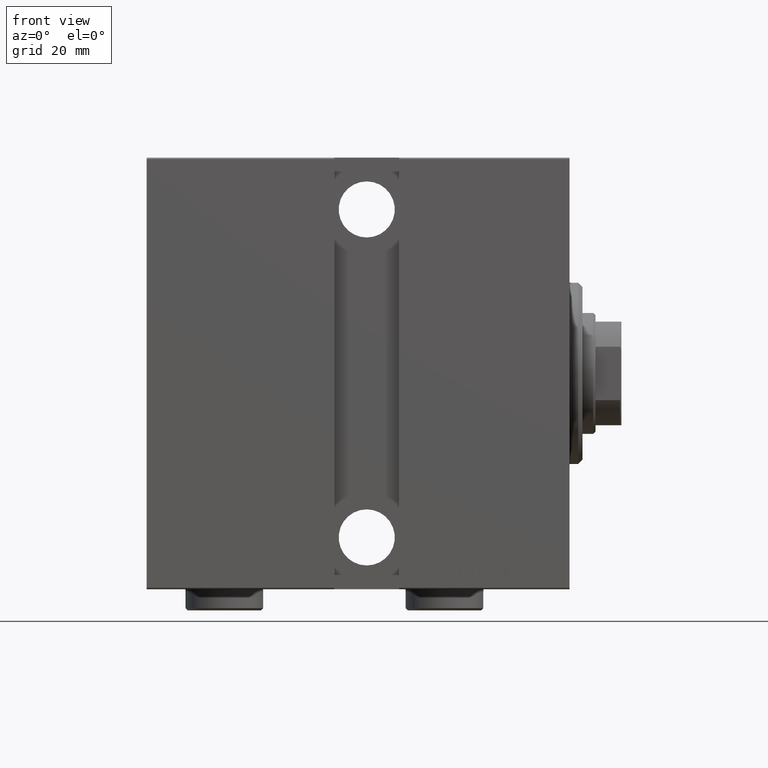
[diagram: clean part render]
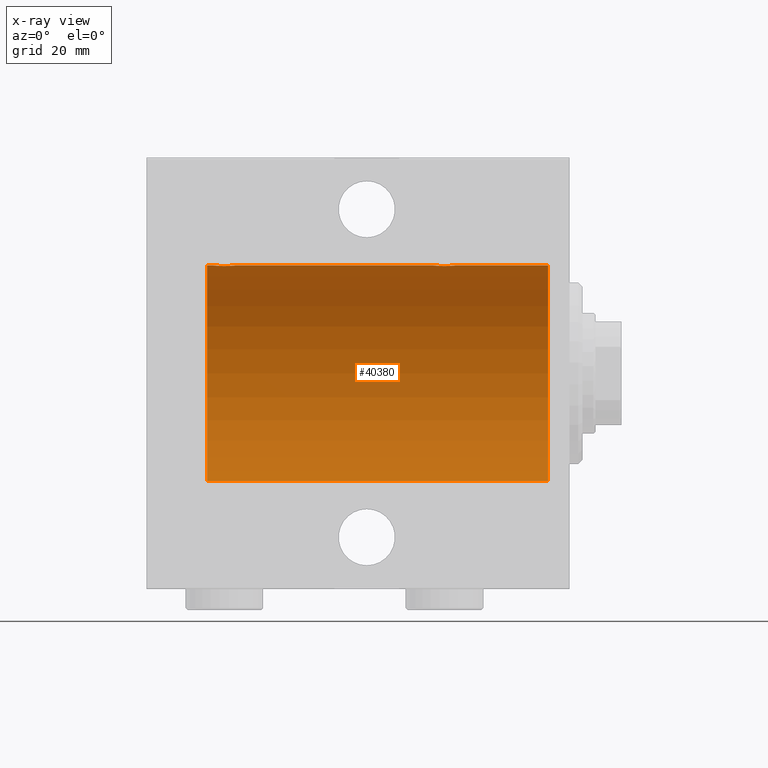
[diagram: x-ray — body ghosted, one internal face saturated and labeled with its STEP entity id]
A machine part, front view, then the same camera in x-ray: the body is ghosted and one INTERNAL B-rep face — a face not visible from any outside direction — is saturated and labeled: STEP entity #40380.
In plain terms, the highlighted cylindrical surface (partial cylindrical patch) has radius 25 mm, axis along (1, 0, -0).
Its self-contained STEP definition (entity closure, byte-faithful):
#356 = CARTESIAN_POINT ( 'NONE',  ( 27.34616663850662377, -1.881857718844717642, 24.92933960374833902 ) ) ;
#478 = ORIENTED_EDGE ( 'NONE', *, *, #33366, .T. ) ;
#578 = CARTESIAN_POINT ( 'NONE',  ( 28.35095609830904095, -2.419770561643911133, 24.88263927071751169 ) ) ;
#1427 = LINE ( 'NONE', #39057, #20992 ) ;
#2163 = LINE ( 'NONE', #37487, #43838 ) ;
#2765 = CARTESIAN_POINT ( 'NONE',  ( 82.16827641493958367, -1.255214705003175446, 24.96884293994578030 ) ) ;
#2984 = CARTESIAN_POINT ( 'NONE',  ( 82.43349355239749343, -0.6588655613945794132, 24.99312727339970053 ) ) ;
#3433 = CARTESIAN_POINT ( 'NONE',  ( 77.50000000000004263, -0.1631750940176218967, 25.00000000000000355 ) ) ;
#3709 = CARTESIAN_POINT ( 'NONE',  ( 26.50000000000001066, -0.1631750940176202591, 25.00000000000001066 ) ) ;
#3754 = VERTEX_POINT ( 'NONE', #29375 ) ;
#3929 = CARTESIAN_POINT ( 'NONE',  ( 26.51582159942343608, -0.3254210271412226740, 24.99840249400844883 ) ) ;
#4145 = CARTESIAN_POINT ( 'NONE',  ( 28.19211657594193809, -2.371528299825748753, 24.88734287464371064 ) ) ;
#4580 = CARTESIAN_POINT ( 'NONE',  ( 30.65121133559111755, -1.884161199660619124, 24.92916496727982079 ) ) ;
#4992 = EDGE_CURVE ( 'NONE', #36792, #24280, #28335, .T. ) ;
#5496 = EDGE_CURVE ( 'NONE', #36792, #10493, #2163, .T. ) ;
#5500 = CIRCLE ( 'NONE', #30401, 25.00000000000000000 ) ;
#6231 = LINE ( 'NONE', #19602, #40265 ) ;
#6324 = CARTESIAN_POINT ( 'NONE',  ( 82.50000000000001421, 2.791216707898424283E-15, 25.00000000000000000 ) ) ;
#6994 = CARTESIAN_POINT ( 'NONE',  ( 80.16323589638544433, -2.500125740978193178, 24.87467329022545925 ) ) ;
#7273 = CARTESIAN_POINT ( 'NONE',  ( 30.88185954148646317, -1.653834020452940479, 24.94550385189585739 ) ) ;
#7713 = CARTESIAN_POINT ( 'NONE',  ( 26.82988709719075260, -1.252049606094339351, 24.96900299967626680 ) ) ;
#7925 = CARTESIAN_POINT ( 'NONE',  ( 30.25084023924055643, -2.170728182476721280, 24.90574631553725027 ) ) ;
#8339 = DIRECTION ( 'NONE',  ( -1.000000000000000000, -0.000000000000000000, -0.000000000000000000 ) ) ;
#8355 = CARTESIAN_POINT ( 'NONE',  ( 84.00000000000000000, 0.000000000000000000, 0.000000000000000000 ) ) ;
#8666 = VERTEX_POINT ( 'NONE', #26337 ) ;
#9364 = CARTESIAN_POINT ( 'NONE',  ( 26.50000000000000355, -1.940558383798427991E-23, 25.00000000000000000 ) ) ;
#9456 = CARTESIAN_POINT ( 'NONE',  ( 79.67052319885733880, -2.483544361357268304, 24.87635491893502149 ) ) ;
#9670 = CARTESIAN_POINT ( 'NONE',  ( 77.51582159942344674, -0.3254210271412231181, 24.99840249400844883 ) ) ;
#9895 = CARTESIAN_POINT ( 'NONE',  ( 82.50000000000005684, -0.3305063766663752789, 25.00000000000000711 ) ) ;
#10319 = VERTEX_POINT ( 'NONE', #38498 ) ;
#10330 = CARTESIAN_POINT ( 'NONE',  ( 79.83293504821945419, -2.499872792855080572, 24.87469871246082675 ) ) ;
#10493 = VERTEX_POINT ( 'NONE', #16867 ) ;
#12150 = FACE_OUTER_BOUND ( 'NONE', #42795, .T. ) ;
#12929 = DIRECTION ( 'NONE',  ( -1.000000000000000000, 0.000000000000000000, 0.000000000000000000 ) ) ;
#13025 = CARTESIAN_POINT ( 'NONE',  ( 81.10723845838413126, -2.247417070759893942, 24.89885693081947338 ) ) ;
#13415 = ORIENTED_EDGE ( 'NONE', *, *, #18627, .F. ) ;
#13980 = ORIENTED_EDGE ( 'NONE', *, *, #32767, .T. ) ;
#14164 = CARTESIAN_POINT ( 'NONE',  ( 30.98538033717094464, -1.528152964861313023, 24.95362559291378801 ) ) ;
#16143 = DIRECTION ( 'NONE',  ( 0.000000000000000000, 0.000000000000000000, 1.000000000000000000 ) ) ;
#16577 = CARTESIAN_POINT ( 'NONE',  ( 78.34616663850664509, -1.881857718844719640, 24.92933960374833902 ) ) ;
#16793 = CARTESIAN_POINT ( 'NONE',  ( 78.47463817756926119, -1.987446652080266496, 24.92104239223421303 ) ) ;
#16867 = CARTESIAN_POINT ( 'NONE',  ( 5.000000000000004441, 0.000000000000000000, 25.00000000000000000 ) ) ;
#17012 = CARTESIAN_POINT ( 'NONE',  ( 78.11587617213530166, -1.651251241585104834, 24.94567559498348785 ) ) ;
#17291 = CARTESIAN_POINT ( 'NONE',  ( 29.80435660916302254, -2.372734907014176553, 24.88722742718433878 ) ) ;
#17294 = EDGE_CURVE ( 'NONE', #8666, #3754, #25344, .T. ) ;
#17511 = CARTESIAN_POINT ( 'NONE',  ( 27.47463817756919369, -1.987446652080264275, 24.92104239223420592 ) ) ;
#17947 = CARTESIAN_POINT ( 'NONE',  ( 27.74616804575497042, -2.169003991399871989, 24.90589728951139037 ) ) ;
#18006 = LINE ( 'NONE', #28246, #27551 ) ;
#18371 = DIRECTION ( 'NONE',  ( 0.000000000000000000, 0.000000000000000000, 1.000000000000000000 ) ) ;
#18627 = EDGE_CURVE ( 'NONE', #24331, #24280, #6231, .T. ) ;
#18948 = EDGE_CURVE ( 'NONE', #24331, #32923, #22329, .T. ) ;
#19602 = CARTESIAN_POINT ( 'NONE',  ( 84.00000000000000000, 0.000000000000000000, 25.00000000000000000 ) ) ;
#19693 = CARTESIAN_POINT ( 'NONE',  ( 78.01250184165604651, -1.525407911884360201, 24.95379469572362297 ) ) ;
#19911 = CARTESIAN_POINT ( 'NONE',  ( 77.50000000000001421, -1.940163953345817485E-23, 25.00000000000000000 ) ) ;
#20079 = ORIENTED_EDGE ( 'NONE', *, *, #17294, .F. ) ;
#20350 = CARTESIAN_POINT ( 'NONE',  ( 78.88963203491135801, -2.245863995402899160, 24.89899750494197050 ) ) ;
#20992 = VECTOR ( 'NONE', #8339, 1000.000000000000000 ) ;
#21284 = CARTESIAN_POINT ( 'NONE',  ( 27.11587617213529100, -1.651251241585102836, 24.94567559498349141 ) ) ;
#21539 = ORIENTED_EDGE ( 'NONE', *, *, #5496, .F. ) ;
#21897 = EDGE_CURVE ( 'NONE', #3754, #32923, #1427, .T. ) ;
#22329 = B_SPLINE_CURVE_WITH_KNOTS ( 'NONE', 3,
 ( #19911, #3433, #9670, #37497, #33499, #37266, #30152, #19693, #17012, #16577, #16793, #36619, #20350, #40828, #30369, #9456, #10330, #6994, #23243, #30813, #43522, #13025, #30590, #33277, #37052, #40385, #26592, #2765, #36836, #2984, #9895, #6324 ),
 .UNSPECIFIED., .F., .F.,
 ( 4, 2, 2, 2, 2, 2, 2, 2, 2, 2, 2, 2, 2, 2, 2, 4 ),
 ( 0.007821024441662294616, 0.008309723826317902753, 0.008798423210973510891, 0.009287122595629119029, 0.009775821980284727167, 0.01026452136494033530, 0.01075322074959594344, 0.01124192013425155158, 0.01173061951890715972, 0.01221931890356276786, 0.01270801828821837599, 0.01319671767287398413, 0.01368541705752959400, 0.01417411644218520041, 0.01466281582684080854, 0.01564021459615200921 ),
 .UNSPECIFIED. ) ;
#22479 = AXIS2_PLACEMENT_3D ( 'NONE', #32238, #36414, #16143 ) ;
#23243 = CARTESIAN_POINT ( 'NONE',  ( 80.32596570039464723, -2.484007091859760763, 24.87630842367763861 ) ) ;
#24188 = CARTESIAN_POINT ( 'NONE',  ( 29.32596570039459749, -2.484007091859766092, 24.87630842367763506 ) ) ;
#24280 = VERTEX_POINT ( 'NONE', #38094 ) ;
#24331 = VERTEX_POINT ( 'NONE', #34975 ) ;
#24409 = CARTESIAN_POINT ( 'NONE',  ( 31.24606379094068132, -1.109818057797417712, 24.97580694515542632 ) ) ;
#24804 = CARTESIAN_POINT ( 'NONE',  ( 82.50000000000001421, 2.791216707898424283E-15, 25.00000000000000000 ) ) ;
#25061 = CARTESIAN_POINT ( 'NONE',  ( 26.75239748980448695, -1.106703319666882956, 24.97594585958023217 ) ) ;
#25307 = ORIENTED_EDGE ( 'NONE', *, *, #18948, .T. ) ;
#25344 = CIRCLE ( 'NONE', #22479, 25.00000000000000000 ) ;
#25411 = CARTESIAN_POINT ( 'NONE',  ( 5.000000000000004441, 0.000000000000000000, 0.000000000000000000 ) ) ;
#26337 = CARTESIAN_POINT ( 'NONE',  ( 84.00000000000000000, 3.061616997868382254E-15, -25.00000000000000000 ) ) ;
#26592 = CARTESIAN_POINT ( 'NONE',  ( 81.98538033717099438, -1.528152964861306806, 24.95362559291379156 ) ) ;
#27528 = CARTESIAN_POINT ( 'NONE',  ( 31.43349355239748988, -0.6588655613945876288, 24.99312727339970408 ) ) ;
#27551 = VECTOR ( 'NONE', #28028, 1000.000000000000000 ) ;
#27747 = CARTESIAN_POINT ( 'NONE',  ( 31.16827641493957302, -1.255214705003182774, 24.96884293994578385 ) ) ;
#28028 = DIRECTION ( 'NONE',  ( -1.000000000000000000, -0.000000000000000000, -0.000000000000000000 ) ) ;
#28183 = CARTESIAN_POINT ( 'NONE',  ( 30.52256774340189338, -1.989585286700246369, 24.92087098724766037 ) ) ;
#28246 = CARTESIAN_POINT ( 'NONE',  ( 84.00000000000000000, 3.061616997868382254E-15, -25.00000000000000000 ) ) ;
#28335 = B_SPLINE_CURVE_WITH_KNOTS ( 'NONE', 3,
 ( #41332, #3709, #3929, #38204, #38414, #25061, #7713, #34651, #21284, #356, #17511, #17947, #31302, #4145, #578, #30865, #34434, #31078, #24188, #38626, #17291, #37770, #7925, #28183, #4580, #7273, #14164, #27747, #24409, #27528, #41103, #31739 ),
 .UNSPECIFIED., .F., .F.,
 ( 4, 2, 2, 2, 2, 2, 2, 2, 2, 2, 2, 2, 2, 2, 2, 4 ),
 ( 0.007821024441662273799, 0.008309723826317880202, 0.008798423210973484870, 0.009287122595629091273, 0.009775821980284697676, 0.01026452136494030234, 0.01075322074959590701, 0.01124192013425151342, 0.01173061951890711982, 0.01221931890356272449, 0.01270801828821833263, 0.01319671767287393729, 0.01368541705752954196, 0.01417411644218514837, 0.01466281582684075477, 0.01564021459615196757 ),
 .UNSPECIFIED. ) ;
#29375 = CARTESIAN_POINT ( 'NONE',  ( 84.00000000000000000, 0.000000000000000000, 25.00000000000000000 ) ) ;
#29549 = DIRECTION ( 'NONE',  ( -1.000000000000000000, -0.000000000000000000, -0.000000000000000000 ) ) ;
#30152 = CARTESIAN_POINT ( 'NONE',  ( 77.82988709719073483, -1.252049606094332024, 24.96900299967626680 ) ) ;
#30369 = CARTESIAN_POINT ( 'NONE',  ( 79.35095609830904095, -2.419770561643906248, 24.88263927071751169 ) ) ;
#30401 = AXIS2_PLACEMENT_3D ( 'NONE', #25411, #12929, #40285 ) ;
#30590 = CARTESIAN_POINT ( 'NONE',  ( 81.25084023924057419, -2.170728182476715951, 24.90574631553725027 ) ) ;
#30813 = CARTESIAN_POINT ( 'NONE',  ( 80.64560666148635448, -2.420689345803754833, 24.88254961038874313 ) ) ;
#30865 = CARTESIAN_POINT ( 'NONE',  ( 28.67052319885731393, -2.483544361357271413, 24.87635491893501438 ) ) ;
#31078 = CARTESIAN_POINT ( 'NONE',  ( 29.16323589638542302, -2.500125740978195843, 24.87467329022545570 ) ) ;
#31302 = CARTESIAN_POINT ( 'NONE',  ( 27.88963203491136866, -2.245863995402901825, 24.89899750494197761 ) ) ;
#31325 = AXIS2_PLACEMENT_3D ( 'NONE', #8355, #38846, #18371 ) ;
#31739 = CARTESIAN_POINT ( 'NONE',  ( 31.50000000000000000, -3.363311788663921560E-15, 25.00000000000000000 ) ) ;
#32238 = CARTESIAN_POINT ( 'NONE',  ( 84.00000000000000000, 0.000000000000000000, 0.000000000000000000 ) ) ;
#32767 = EDGE_CURVE ( 'NONE', #8666, #10319, #18006, .T. ) ;
#32923 = VERTEX_POINT ( 'NONE', #24804 ) ;
#33277 = CARTESIAN_POINT ( 'NONE',  ( 81.52256774340189338, -1.989585286700241484, 24.92087098724765681 ) ) ;
#33366 = EDGE_CURVE ( 'NONE', #10319, #10493, #5500, .T. ) ;
#33499 = CARTESIAN_POINT ( 'NONE',  ( 77.62784030591393503, -0.8058335233485491855, 24.98746277938383287 ) ) ;
#34434 = CARTESIAN_POINT ( 'NONE',  ( 28.83293504821939734, -2.499872792855082793, 24.87469871246082675 ) ) ;
#34651 = CARTESIAN_POINT ( 'NONE',  ( 27.01250184165601453, -1.525407911884367085, 24.95379469572361941 ) ) ;
#34975 = CARTESIAN_POINT ( 'NONE',  ( 77.50000000000001421, -1.940163953345817485E-23, 25.00000000000000000 ) ) ;
#35776 = ORIENTED_EDGE ( 'NONE', *, *, #4992, .T. ) ;
#36319 = DIRECTION ( 'NONE',  ( -1.000000000000000000, -0.000000000000000000, -0.000000000000000000 ) ) ;
#36414 = DIRECTION ( 'NONE',  ( -1.000000000000000000, 0.000000000000000000, 0.000000000000000000 ) ) ;
#36619 = CARTESIAN_POINT ( 'NONE',  ( 78.74616804575498463, -2.169003991399871989, 24.90589728951138682 ) ) ;
#36792 = VERTEX_POINT ( 'NONE', #9364 ) ;
#36836 = CARTESIAN_POINT ( 'NONE',  ( 82.24606379094068132, -1.109818057797408608, 24.97580694515542277 ) ) ;
#37052 = CARTESIAN_POINT ( 'NONE',  ( 81.65121133559114242, -1.884161199660608688, 24.92916496727982434 ) ) ;
#37266 = CARTESIAN_POINT ( 'NONE',  ( 77.75239748980452248, -1.106703319666886065, 24.97594585958023572 ) ) ;
#37487 = CARTESIAN_POINT ( 'NONE',  ( 84.00000000000000000, 0.000000000000000000, 25.00000000000000000 ) ) ;
#37497 = CARTESIAN_POINT ( 'NONE',  ( 77.57985090779074255, -0.6480119923854228414, 24.99212088949390775 ) ) ;
#37770 = CARTESIAN_POINT ( 'NONE',  ( 30.10723845838410284, -2.247417070759899271, 24.89885693081946272 ) ) ;
#38094 = CARTESIAN_POINT ( 'NONE',  ( 31.50000000000000000, -3.363311788663921560E-15, 25.00000000000000000 ) ) ;
#38204 = CARTESIAN_POINT ( 'NONE',  ( 26.57985090779071413, -0.6480119923854232855, 24.99212088949390775 ) ) ;
#38414 = CARTESIAN_POINT ( 'NONE',  ( 26.62784030591392437, -0.8058335233485456328, 24.98746277938383287 ) ) ;
#38498 = CARTESIAN_POINT ( 'NONE',  ( 5.000000000000004441, 3.061616997868382254E-15, -25.00000000000000000 ) ) ;
#38626 = CARTESIAN_POINT ( 'NONE',  ( 29.64560666148631896, -2.420689345803761938, 24.88254961038873958 ) ) ;
#38846 = DIRECTION ( 'NONE',  ( -1.000000000000000000, -0.000000000000000000, -0.000000000000000000 ) ) ;
#39057 = CARTESIAN_POINT ( 'NONE',  ( 84.00000000000000000, 0.000000000000000000, 25.00000000000000000 ) ) ;
#39073 = CYLINDRICAL_SURFACE ( 'NONE', #31325, 25.00000000000000000 ) ;
#40265 = VECTOR ( 'NONE', #36319, 1000.000000000000000 ) ;
#40285 = DIRECTION ( 'NONE',  ( 0.000000000000000000, 0.000000000000000000, 1.000000000000000000 ) ) ;
#40380 = ADVANCED_FACE ( 'NONE', ( #12150 ), #39073, .F. ) ;
#40385 = CARTESIAN_POINT ( 'NONE',  ( 81.88185954148649159, -1.653834020452929598, 24.94550385189585029 ) ) ;
#40828 = CARTESIAN_POINT ( 'NONE',  ( 79.19211657594196652, -2.371528299825746089, 24.88734287464371420 ) ) ;
#41103 = CARTESIAN_POINT ( 'NONE',  ( 31.49999999999999289, -0.3305063766663730029, 25.00000000000000355 ) ) ;
#41332 = CARTESIAN_POINT ( 'NONE',  ( 26.50000000000000355, -1.940558383798427991E-23, 25.00000000000000000 ) ) ;
#42795 = EDGE_LOOP ( 'NONE', ( #20079, #13980, #478, #21539, #35776, #13415, #25307, #42838 ) ) ;
#42838 = ORIENTED_EDGE ( 'NONE', *, *, #21897, .F. ) ;
#43522 = CARTESIAN_POINT ( 'NONE',  ( 80.80435660916305096, -2.372734907014170780, 24.88722742718433523 ) ) ;
#43838 = VECTOR ( 'NONE', #29549, 1000.000000000000000 ) ;